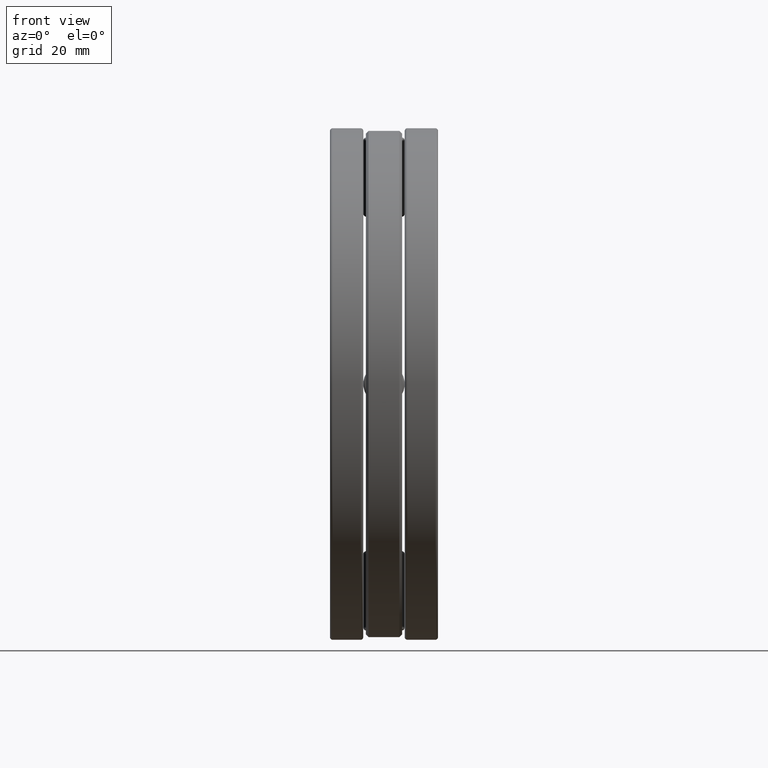
[diagram: clean part render]
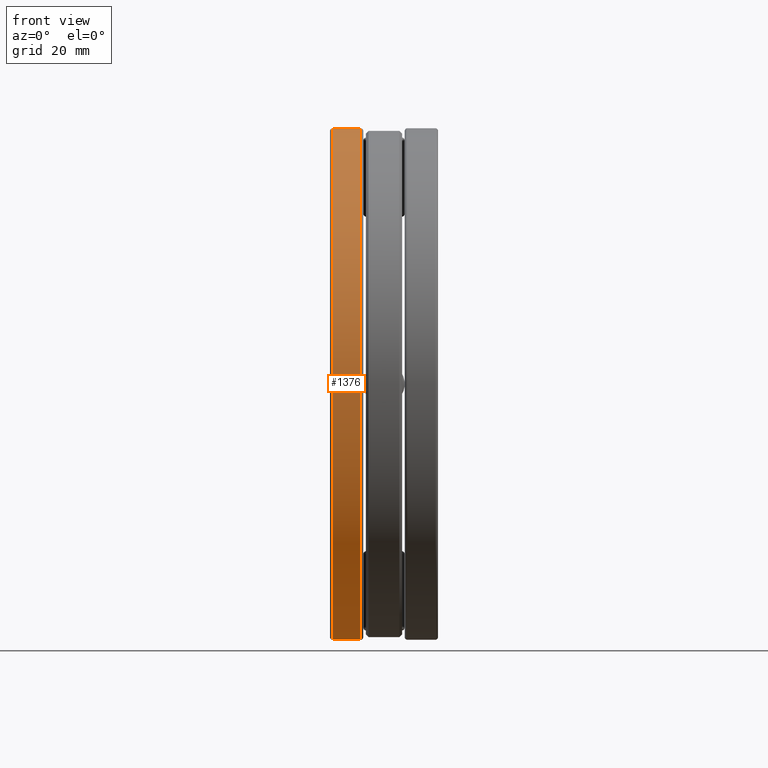
[diagram: same view with one face highlighted and labeled with its STEP entity id]
A machine part, front view. The second image highlights one B-rep face of the part: STEP entity #1376.
In plain terms, the highlighted cylindrical surface (bore or boss wall) has radius 48.8156 mm, axis along (-1, -0, -0).
Its self-contained STEP definition (entity closure, byte-faithful):
#90 = AXIS2_PLACEMENT_3D ( 'NONE', #651, #631, #750 ) ;
#162 = EDGE_LOOP ( 'NONE', ( #1040 ) ) ;
#202 = CARTESIAN_POINT ( 'NONE',  ( 0.0000000000000000000, 0.0000000000000000000, 0.0000000000000000000 ) ) ;
#232 = DIRECTION ( 'NONE',  ( 0.0000000000000000000, 0.0000000000000000000, 1.000000000000000000 ) ) ;
#277 = CIRCLE ( 'NONE', #90, 1.921875000000000000 ) ;
#306 = EDGE_CURVE ( 'NONE', #931, #931, #277, .T. ) ;
#323 = DIRECTION ( 'NONE',  ( 0.0000000000000000000, 0.0000000000000000000, 1.000000000000000000 ) ) ;
#338 = CIRCLE ( 'NONE', #493, 1.921875000000000000 ) ;
#355 = DIRECTION ( 'NONE',  ( -1.000000000000000000, -0.0000000000000000000, -0.0000000000000000000 ) ) ;
#363 = CARTESIAN_POINT ( 'NONE',  ( -0.1759999999999994300, 0.0000000000000000000, 0.0000000000000000000 ) ) ;
#443 = AXIS2_PLACEMENT_3D ( 'NONE', #202, #1003, #323 ) ;
#493 = AXIS2_PLACEMENT_3D ( 'NONE', #363, #355, #232 ) ;
#510 = CARTESIAN_POINT ( 'NONE',  ( -0.3860000000000003400, 0.0000000000000000000, 1.921875000000000000 ) ) ;
#525 = CARTESIAN_POINT ( 'NONE',  ( -0.1759999999999994300, 0.0000000000000000000, 1.921875000000000000 ) ) ;
#631 = DIRECTION ( 'NONE',  ( -1.000000000000000000, -0.0000000000000000000, -0.0000000000000000000 ) ) ;
#651 = CARTESIAN_POINT ( 'NONE',  ( -0.3860000000000003400, 0.0000000000000000000, 0.0000000000000000000 ) ) ;
#710 = ORIENTED_EDGE ( 'NONE', *, *, #772, .T. ) ;
#750 = DIRECTION ( 'NONE',  ( 0.0000000000000000000, 0.0000000000000000000, 1.000000000000000000 ) ) ;
#772 = EDGE_CURVE ( 'NONE', #1317, #1317, #338, .T. ) ;
#931 = VERTEX_POINT ( 'NONE', #510 ) ;
#1003 = DIRECTION ( 'NONE',  ( -1.000000000000000000, -0.0000000000000000000, -0.0000000000000000000 ) ) ;
#1040 = ORIENTED_EDGE ( 'NONE', *, *, #306, .F. ) ;
#1067 = FACE_OUTER_BOUND ( 'NONE', #1447, .T. ) ;
#1243 = CYLINDRICAL_SURFACE ( 'NONE', #443, 1.921875000000000000 ) ;
#1317 = VERTEX_POINT ( 'NONE', #525 ) ;
#1364 = FACE_OUTER_BOUND ( 'NONE', #162, .T. ) ;
#1376 = ADVANCED_FACE ( 'NONE', ( #1364, #1067 ), #1243, .T. ) ;
#1447 = EDGE_LOOP ( 'NONE', ( #710 ) ) ;